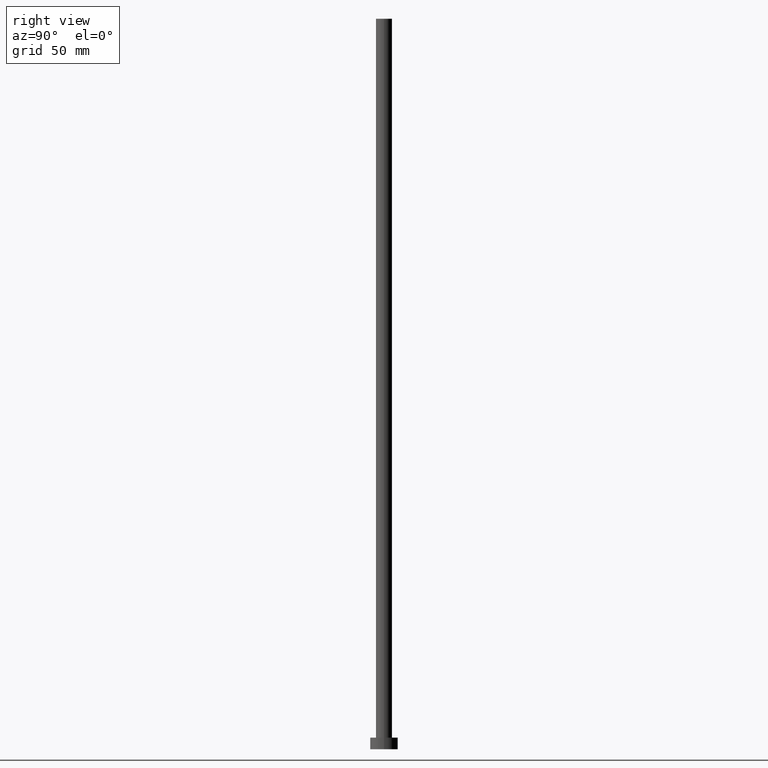
[diagram: clean part render]
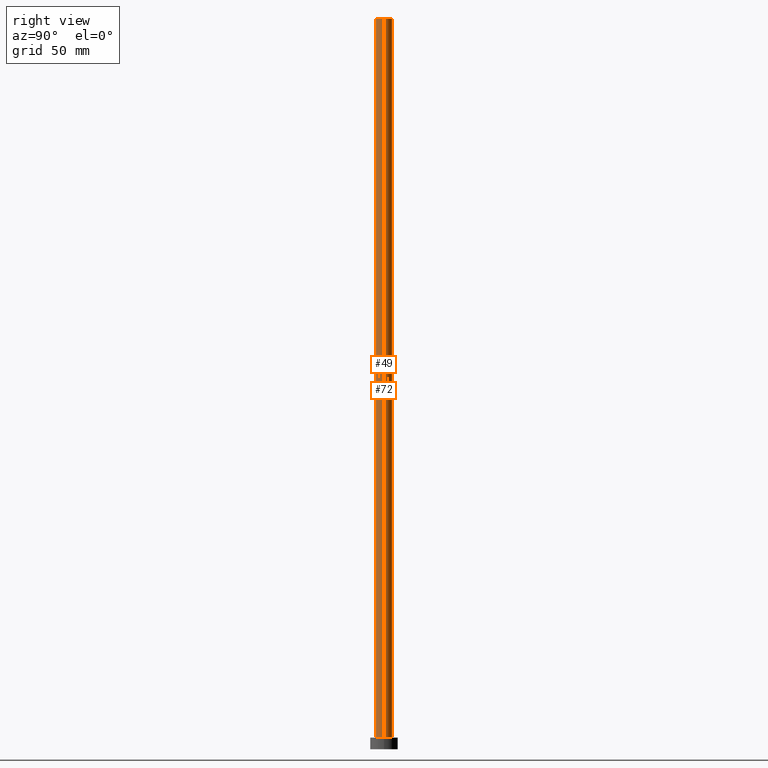
[diagram: same view with one multi-face feature highlighted, each face labeled with its STEP entity id]
A machine part, right view. The highlighted faces form ONE feature: a constant-radius fillet chain: 2 tangent blend faces with common blend radius 3.5 mm. The faces share edges in the B-rep.
Their STEP definitions:
[1] entity #72 (Cylinder):
#6 = ORIENTED_EDGE ( 'NONE', *, *, #227, .F. ) ;
#10 = CARTESIAN_POINT ( 'NONE',  ( -3.500000000000000000, 0.000000000000000000, 5.000000000000000000 ) ) ;
#23 = VERTEX_POINT ( 'NONE', #224 ) ;
#27 = EDGE_CURVE ( 'NONE', #37, #173, #86, .T. ) ;
#31 = DIRECTION ( 'NONE',  ( -1.000000000000000000, 0.000000000000000000, 0.000000000000000000 ) ) ;
#37 = VERTEX_POINT ( 'NONE', #165 ) ;
#45 = CARTESIAN_POINT ( 'NONE',  ( -3.500000000000000000, 0.000000000000000000, 315.0000000000000000 ) ) ;
#59 = VERTEX_POINT ( 'NONE', #166 ) ;
#67 = LINE ( 'NONE', #124, #92 ) ;
#72 = ADVANCED_FACE ( 'NONE', ( #109 ), #93, .T. ) ;
#83 = AXIS2_PLACEMENT_3D ( 'NONE', #206, #211, #252 ) ;
#86 = CIRCLE ( 'NONE', #150, 3.500000000000000000 ) ;
#92 = VECTOR ( 'NONE', #194, 1000.000000000000000 ) ;
#93 = CYLINDRICAL_SURFACE ( 'NONE', #180, 3.500000000000000000 ) ;
#106 = EDGE_CURVE ( 'NONE', #23, #37, #67, .T. ) ;
#109 = FACE_OUTER_BOUND ( 'NONE', #130, .T. ) ;
#120 = DIRECTION ( 'NONE',  ( -0.000000000000000000, -0.000000000000000000, -1.000000000000000000 ) ) ;
#124 = CARTESIAN_POINT ( 'NONE',  ( 3.500000000000000000, 4.286263797015736595E-16, 315.0000000000000000 ) ) ;
#125 = DIRECTION ( 'NONE',  ( -0.000000000000000000, -0.000000000000000000, -1.000000000000000000 ) ) ;
#130 = EDGE_LOOP ( 'NONE', ( #163, #244, #201, #6 ) ) ;
#142 = LINE ( 'NONE', #45, #231 ) ;
#150 = AXIS2_PLACEMENT_3D ( 'NONE', #246, #241, #188 ) ;
#160 = CARTESIAN_POINT ( 'NONE',  ( 0.000000000000000000, 0.000000000000000000, 315.0000000000000000 ) ) ;
#163 = ORIENTED_EDGE ( 'NONE', *, *, #235, .F. ) ;
#165 = CARTESIAN_POINT ( 'NONE',  ( 3.500000000000000000, 4.286263797015736595E-16, 5.000000000000000000 ) ) ;
#166 = CARTESIAN_POINT ( 'NONE',  ( -3.500000000000000000, 0.000000000000000000, 315.0000000000000000 ) ) ;
#173 = VERTEX_POINT ( 'NONE', #10 ) ;
#180 = AXIS2_PLACEMENT_3D ( 'NONE', #160, #125, #31 ) ;
#188 = DIRECTION ( 'NONE',  ( 1.000000000000000000, 0.000000000000000000, 0.000000000000000000 ) ) ;
#193 = CIRCLE ( 'NONE', #83, 3.500000000000000000 ) ;
#194 = DIRECTION ( 'NONE',  ( -0.000000000000000000, -0.000000000000000000, -1.000000000000000000 ) ) ;
#201 = ORIENTED_EDGE ( 'NONE', *, *, #27, .T. ) ;
#206 = CARTESIAN_POINT ( 'NONE',  ( 0.000000000000000000, 0.000000000000000000, 315.0000000000000000 ) ) ;
#211 = DIRECTION ( 'NONE',  ( 0.000000000000000000, 0.000000000000000000, 1.000000000000000000 ) ) ;
#224 = CARTESIAN_POINT ( 'NONE',  ( 3.500000000000000000, 4.286263797015736595E-16, 315.0000000000000000 ) ) ;
#227 = EDGE_CURVE ( 'NONE', #59, #173, #142, .T. ) ;
#231 = VECTOR ( 'NONE', #120, 1000.000000000000000 ) ;
#235 = EDGE_CURVE ( 'NONE', #23, #59, #193, .T. ) ;
#241 = DIRECTION ( 'NONE',  ( 0.000000000000000000, 0.000000000000000000, 1.000000000000000000 ) ) ;
#244 = ORIENTED_EDGE ( 'NONE', *, *, #106, .T. ) ;
#246 = CARTESIAN_POINT ( 'NONE',  ( 0.000000000000000000, 0.000000000000000000, 5.000000000000000000 ) ) ;
#252 = DIRECTION ( 'NONE',  ( 1.000000000000000000, 0.000000000000000000, 0.000000000000000000 ) ) ;
[2] entity #49 (Cylinder):
#8 = DIRECTION ( 'NONE',  ( -0.000000000000000000, -0.000000000000000000, -1.000000000000000000 ) ) ;
#10 = CARTESIAN_POINT ( 'NONE',  ( -3.500000000000000000, 0.000000000000000000, 5.000000000000000000 ) ) ;
#13 = DIRECTION ( 'NONE',  ( 1.000000000000000000, 0.000000000000000000, 0.000000000000000000 ) ) ;
#23 = VERTEX_POINT ( 'NONE', #224 ) ;
#36 = AXIS2_PLACEMENT_3D ( 'NONE', #222, #8, #43 ) ;
#37 = VERTEX_POINT ( 'NONE', #165 ) ;
#40 = FACE_OUTER_BOUND ( 'NONE', #98, .T. ) ;
#43 = DIRECTION ( 'NONE',  ( -1.000000000000000000, 0.000000000000000000, 0.000000000000000000 ) ) ;
#45 = CARTESIAN_POINT ( 'NONE',  ( -3.500000000000000000, 0.000000000000000000, 315.0000000000000000 ) ) ;
#49 = ADVANCED_FACE ( 'NONE', ( #40 ), #186, .T. ) ;
#57 = ORIENTED_EDGE ( 'NONE', *, *, #106, .F. ) ;
#59 = VERTEX_POINT ( 'NONE', #166 ) ;
#67 = LINE ( 'NONE', #124, #92 ) ;
#80 = ORIENTED_EDGE ( 'NONE', *, *, #197, .F. ) ;
#90 = CIRCLE ( 'NONE', #148, 3.500000000000000000 ) ;
#92 = VECTOR ( 'NONE', #194, 1000.000000000000000 ) ;
#98 = EDGE_LOOP ( 'NONE', ( #57, #80, #202, #217 ) ) ;
#106 = EDGE_CURVE ( 'NONE', #23, #37, #67, .T. ) ;
#108 = DIRECTION ( 'NONE',  ( 1.000000000000000000, 0.000000000000000000, 0.000000000000000000 ) ) ;
#120 = DIRECTION ( 'NONE',  ( -0.000000000000000000, -0.000000000000000000, -1.000000000000000000 ) ) ;
#124 = CARTESIAN_POINT ( 'NONE',  ( 3.500000000000000000, 4.286263797015736595E-16, 315.0000000000000000 ) ) ;
#134 = DIRECTION ( 'NONE',  ( 0.000000000000000000, 0.000000000000000000, 1.000000000000000000 ) ) ;
#142 = LINE ( 'NONE', #45, #231 ) ;
#148 = AXIS2_PLACEMENT_3D ( 'NONE', #170, #134, #108 ) ;
#165 = CARTESIAN_POINT ( 'NONE',  ( 3.500000000000000000, 4.286263797015736595E-16, 5.000000000000000000 ) ) ;
#166 = CARTESIAN_POINT ( 'NONE',  ( -3.500000000000000000, 0.000000000000000000, 315.0000000000000000 ) ) ;
#170 = CARTESIAN_POINT ( 'NONE',  ( 0.000000000000000000, 0.000000000000000000, 5.000000000000000000 ) ) ;
#173 = VERTEX_POINT ( 'NONE', #10 ) ;
#174 = AXIS2_PLACEMENT_3D ( 'NONE', #195, #247, #13 ) ;
#185 = CIRCLE ( 'NONE', #174, 3.500000000000000000 ) ;
#186 = CYLINDRICAL_SURFACE ( 'NONE', #36, 3.500000000000000000 ) ;
#194 = DIRECTION ( 'NONE',  ( -0.000000000000000000, -0.000000000000000000, -1.000000000000000000 ) ) ;
#195 = CARTESIAN_POINT ( 'NONE',  ( 0.000000000000000000, 0.000000000000000000, 315.0000000000000000 ) ) ;
#197 = EDGE_CURVE ( 'NONE', #59, #23, #185, .T. ) ;
#202 = ORIENTED_EDGE ( 'NONE', *, *, #227, .T. ) ;
#217 = ORIENTED_EDGE ( 'NONE', *, *, #240, .T. ) ;
#222 = CARTESIAN_POINT ( 'NONE',  ( 0.000000000000000000, 0.000000000000000000, 315.0000000000000000 ) ) ;
#224 = CARTESIAN_POINT ( 'NONE',  ( 3.500000000000000000, 4.286263797015736595E-16, 315.0000000000000000 ) ) ;
#227 = EDGE_CURVE ( 'NONE', #59, #173, #142, .T. ) ;
#231 = VECTOR ( 'NONE', #120, 1000.000000000000000 ) ;
#240 = EDGE_CURVE ( 'NONE', #173, #37, #90, .T. ) ;
#247 = DIRECTION ( 'NONE',  ( 0.000000000000000000, 0.000000000000000000, 1.000000000000000000 ) ) ;